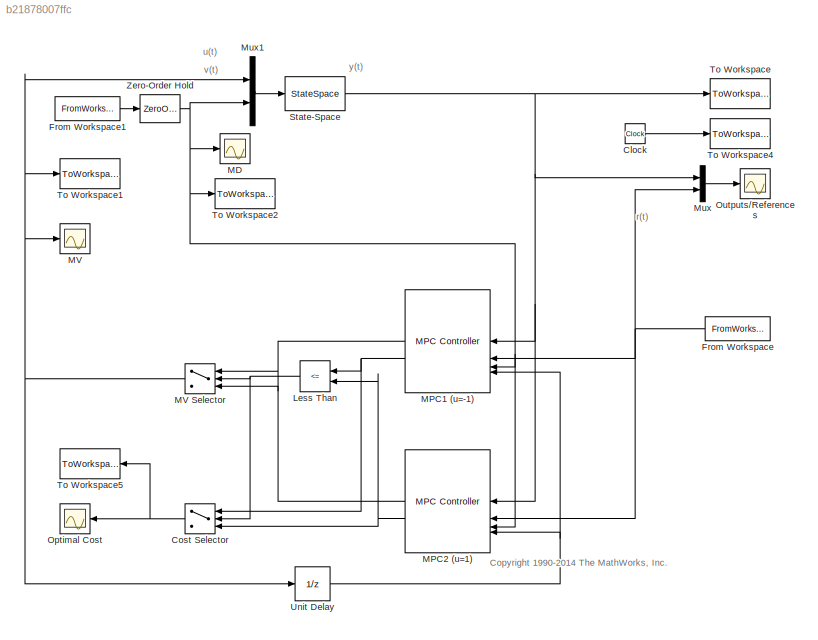
MODEL slx_b21878007ffc
KIND model
CONFIG AbsTol = auto
CONFIG EnableMultiTasking = off
CONFIG FixedStep = auto
CONFIG MaxStep = auto
CONFIG MinStep = auto
CONFIG RelTol = 1e-3
CONFIG SampleTimeConstraint = Unconstrained
CONFIG SolverName = ode5
CONFIG StartTime = 0
CONFIG StopTime = Tstop
BLOCK [Clock] Clock
BLOCK [Switch] Cost Selector
  Criteria = u2 ~= 0
  InputSameDT = off
  SaturateOnIntegerOverflow = off
BLOCK [FromWorkspace] From Workspace
  OutputAfterFinalValue = Holding final value
  VariableName = ref
  ZeroCross = off
BLOCK [FromWorkspace] From Workspace1
  OutputAfterFinalValue = Holding final value
  VariableName = md
  ZeroCross = off
BLOCK [RelationalOperator] Less Than
  InputSameDT = off
  Operator = <=
  OutDataTypeStr = boolean
BLOCK [Scope] MD
  Floating = off
  NumInputPorts = 1
  ScopeSpecificationString = C++SS(StrPVP('Location','[1136, 691, 1399, 918]'),StrPVP('Open','off'),MxPVP('AxesTitles',54,'struct(''axes1'',''%<SignalLabel>'')'),MxPVP('ScopeGraphics',57,'struct(''FigureColor'',''[0.156862745098039 0.156862745098039 0.156862745098039]'',''AxesColor'',''[0 0 0]'',''AxesTickColor'',''[0.686274509803922 0.686274509803922 0.686274509803922]'',''LineColors'',''[1 1 0;1 0 1;0 1 1;1 0 0;0 1 0;0 0 1]...<+351ch>
BLOCK [Reference] MPC1 (u=-1)  REF=mpclib/MPC Controller  (lib defined in mdl_ae329e0e0455)
  SourceBlock = mpclib/MPC Controller
  SourceType = MPC
BLOCK [Reference] MPC2 (u=1)  REF=mpclib/MPC Controller  (lib defined in mdl_ae329e0e0455)
  SourceBlock = mpclib/MPC Controller
  SourceType = MPC
BLOCK [Scope] MV
  Floating = off
  NumInputPorts = 1
  ScopeSpecificationString = Simulink.scopes.TimeScopeBlockCfg('CurrentConfiguration', extmgr.ConfigurationSet(extmgr.Configuration('Core','General UI',true,'FigureColor',[0.156862745098039 0.156862745098039 0.156862745098039]),extmgr.Configuration('Core','Source UI',true),extmgr.Configuration('Sources','WiredSimulink',true,'DataLoggingSaveFormat','Structure','DataLoggingLimitDataPoints',true,'DataLoggingDecimation','1','Data...<+2770ch>
BLOCK [Switch] MV Selector
  Criteria = u2 ~= 0
  InputSameDT = off
  SaturateOnIntegerOverflow = off
BLOCK [Mux] Mux
  DisplayOption = bar
  Inputs = 2
BLOCK [Mux] Mux1
  DisplayOption = bar
  Inputs = 2
BLOCK [Scope] Optimal Cost
  Floating = off
  NumInputPorts = 1
  ScopeSpecificationString = Simulink.scopes.TimeScopeBlockCfg('CurrentConfiguration', extmgr.ConfigurationSet(extmgr.Configuration('Core','General UI',true,'FigureColor',[0.156862745098039 0.156862745098039 0.156862745098039]),extmgr.Configuration('Core','Source UI',true),extmgr.Configuration('Sources','WiredSimulink',true,'DataLoggingVariableName','ScopeData1','DataLoggingSaveFormat','Structure','DataLoggingLimitDataPoints'...<+2828ch>
BLOCK [Scope] Outputs//References
  Floating = off
  NumInputPorts = 1
  ScopeSpecificationString = Simulink.scopes.TimeScopeBlockCfg('CurrentConfiguration', extmgr.ConfigurationSet(extmgr.Configuration('Core','General UI',true,'FigureColor',[0.156862745098039 0.156862745098039 0.156862745098039]),extmgr.Configuration('Core','Source UI',true),extmgr.Configuration('Sources','WiredSimulink',true,'DataLoggingSaveFormat','Structure','DataLoggingLimitDataPoints',true,'DataLoggingDecimation','1','Data...<+2795ch>
BLOCK [StateSpace] State-Space
  A = A
  B = B
  C = C
  D = D
  InitialCondition = x0
BLOCK [ToWorkspace] To Workspace
  MaxDataPoints = Inf
  SampleTime = -1
  VariableName = ysim
BLOCK [ToWorkspace] To Workspace1
  MaxDataPoints = Inf
  SampleTime = -1
  VariableName = usim
BLOCK [ToWorkspace] To Workspace2
  MaxDataPoints = Inf
  SampleTime = -1
  VariableName = v
BLOCK [ToWorkspace] To Workspace4
  MaxDataPoints = Inf
  SampleTime = -1
  VariableName = tsim
BLOCK [ToWorkspace] To Workspace5
  MaxDataPoints = Inf
  SampleTime = -1
  VariableName = cost
BLOCK [UnitDelay] Unit Delay
  HasFrameUpgradeWarning = on
  SampleTime = -1
BLOCK [ZeroOrderHold] Zero-Order Hold
  SampleTime = Ts
ANNOTATION (root): <copyright redacted>
ANNOTATION (root): r(t)
ANNOTATION (root): u(t)
ANNOTATION (root): v(t)
ANNOTATION (root): y(t)
LINE Clock:1 -> To Workspace4:1
NET Cost Selector:1 -> Optimal Cost:1, To Workspace5:1
LINE From Workspace1:1 -> Zero-Order Hold:1
NET From Workspace:1 -> MPC1 (u=-1):2, MPC2 (u=1):2, Mux:2
NET Less Than:1 -> Cost Selector:2, MV Selector:2
LINE MPC1 (u=-1):1 -> MV Selector:1
NET MPC1 (u=-1):2 -> Cost Selector:1, Less Than:1
LINE MPC2 (u=1):1 -> MV Selector:3
NET MPC2 (u=1):2 -> Cost Selector:3, Less Than:2
NET MV Selector:1 -> MV:1, Mux1:1, To Workspace1:1, Unit Delay:1
LINE Mux1:1 -> State-Space:1
LINE Mux:1 -> Outputs//References:1
NET State-Space:1 -> MPC1 (u=-1):1, MPC2 (u=1):1, Mux:1, To Workspace:1
NET Unit Delay:1 -> MPC1 (u=-1):4, MPC2 (u=1):4
NET Zero-Order Hold:1 -> MD:1, MPC1 (u=-1):3, MPC2 (u=1):3, Mux1:2, To Workspace2:1
note: NET lines group one-source signal fan-out (src -> all destinations, sorted); 1:1 wires keep LINE
